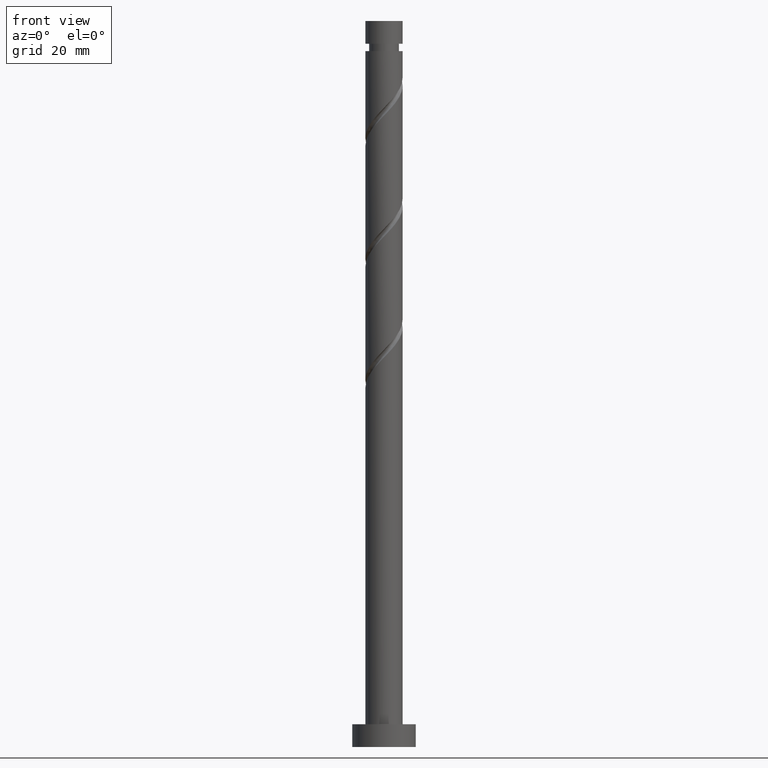
[diagram: clean part render]
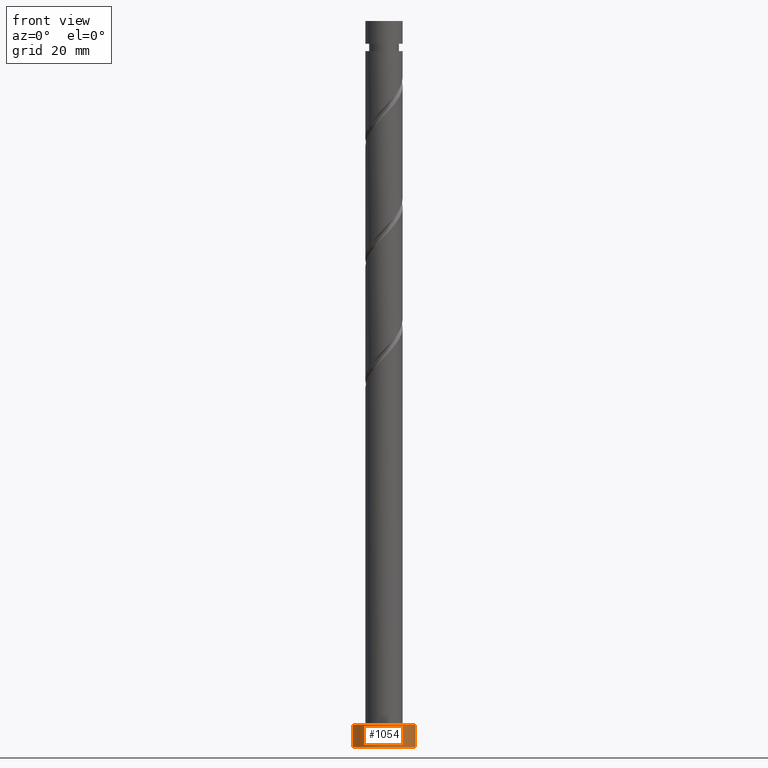
[diagram: same view with one face highlighted and labeled with its STEP entity id]
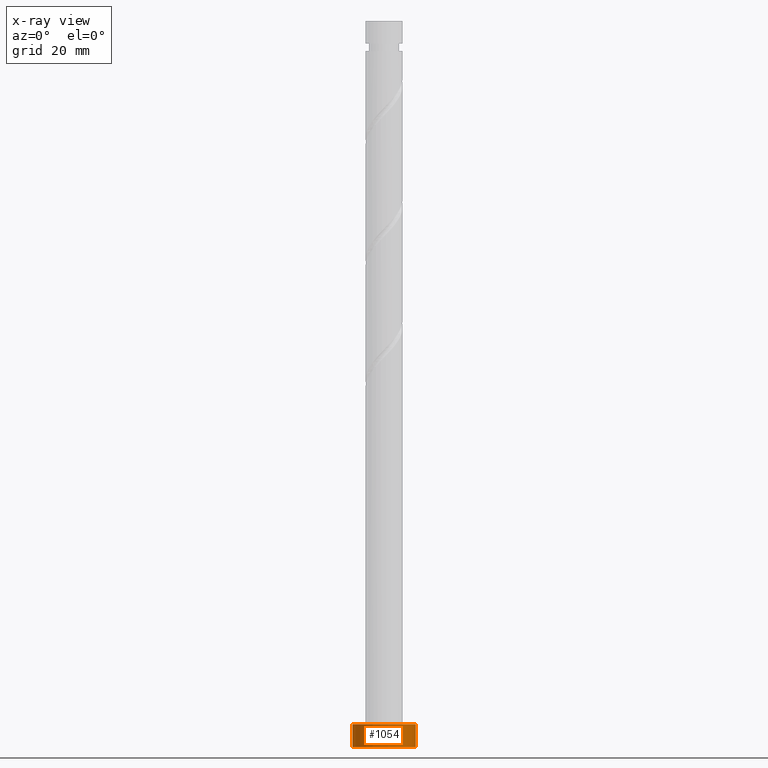
[diagram: x-ray of the same camera — body ghosted, the highlighted face saturated]
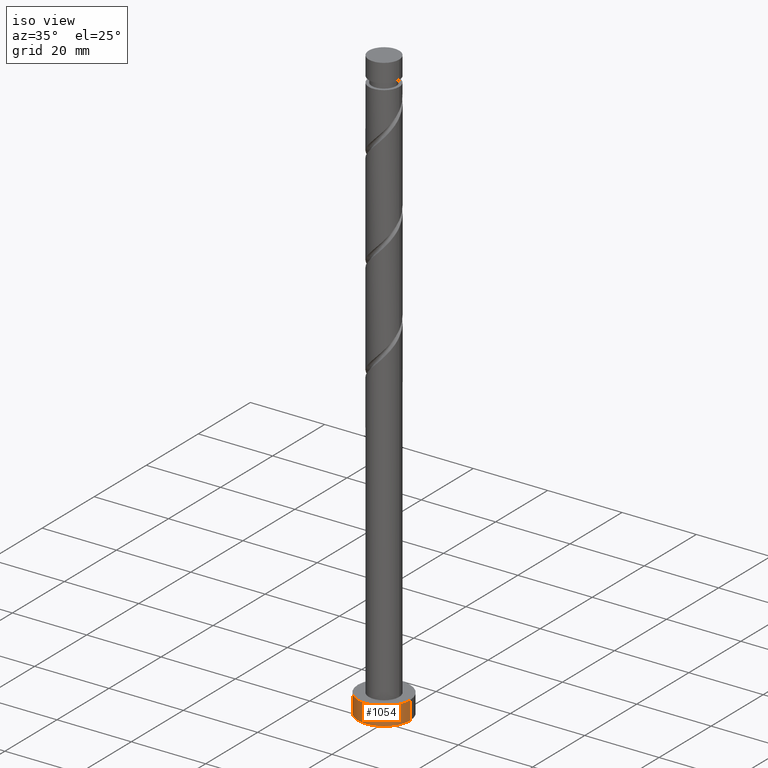
[diagram: same view with one face highlighted and labeled with its STEP entity id]
A machine part, front view. The second image highlights one B-rep face of the part: STEP entity #1054.
The next image is the same camera in x-ray: the body ghosted, the highlighted face saturated — about 0% of this face is hidden behind the body in this view.
A second angle (iso view) of the same face is appended — the face is thin or edge-on in the first view.
In plain terms, the highlighted cylindrical surface (edge-blend (fillet) strip) has radius 7 mm, axis along (-0, -0, -1).
Its self-contained STEP definition (entity closure, byte-faithful):
#3 = VERTEX_POINT ( 'NONE', #1326 ) ;
#11 = VERTEX_POINT ( 'NONE', #1602 ) ;
#18 = AXIS2_PLACEMENT_3D ( 'NONE', #793, #288, #812 ) ;
#74 = DIRECTION ( 'NONE',  ( -1.000000000000000000, 0.000000000000000000, 0.000000000000000000 ) ) ;
#89 = CYLINDRICAL_SURFACE ( 'NONE', #132, 7.000000000000000000 ) ;
#118 = LINE ( 'NONE', #1134, #509 ) ;
#132 = AXIS2_PLACEMENT_3D ( 'NONE', #593, #1098, #74 ) ;
#288 = DIRECTION ( 'NONE',  ( 0.000000000000000000, 0.000000000000000000, 1.000000000000000000 ) ) ;
#306 = DIRECTION ( 'NONE',  ( -0.000000000000000000, -0.000000000000000000, -1.000000000000000000 ) ) ;
#346 = EDGE_CURVE ( 'NONE', #11, #646, #894, .T. ) ;
#362 = DIRECTION ( 'NONE',  ( 0.000000000000000000, 0.000000000000000000, 1.000000000000000000 ) ) ;
#386 = CARTESIAN_POINT ( 'NONE',  ( 0.000000000000000000, 0.000000000000000000, 5.000000000000000000 ) ) ;
#395 = CARTESIAN_POINT ( 'NONE',  ( 7.000000000000000000, 8.572527594031473190E-16, 5.000000000000000000 ) ) ;
#469 = EDGE_CURVE ( 'NONE', #634, #646, #1599, .T. ) ;
#483 = AXIS2_PLACEMENT_3D ( 'NONE', #386, #362, #1242 ) ;
#507 = DIRECTION ( 'NONE',  ( -0.000000000000000000, -0.000000000000000000, -1.000000000000000000 ) ) ;
#509 = VECTOR ( 'NONE', #507, 1000.000000000000000 ) ;
#593 = CARTESIAN_POINT ( 'NONE',  ( 0.000000000000000000, 0.000000000000000000, 5.000000000000000000 ) ) ;
#634 = VERTEX_POINT ( 'NONE', #395 ) ;
#646 = VERTEX_POINT ( 'NONE', #744 ) ;
#689 = EDGE_CURVE ( 'NONE', #3, #11, #118, .T. ) ;
#704 = FACE_OUTER_BOUND ( 'NONE', #1307, .T. ) ;
#744 = CARTESIAN_POINT ( 'NONE',  ( 7.000000000000000000, 8.572527594031473190E-16, 0.000000000000000000 ) ) ;
#793 = CARTESIAN_POINT ( 'NONE',  ( 0.000000000000000000, 0.000000000000000000, 0.000000000000000000 ) ) ;
#806 = ORIENTED_EDGE ( 'NONE', *, *, #346, .T. ) ;
#807 = ORIENTED_EDGE ( 'NONE', *, *, #689, .T. ) ;
#812 = DIRECTION ( 'NONE',  ( 1.000000000000000000, 0.000000000000000000, 0.000000000000000000 ) ) ;
#860 = ORIENTED_EDGE ( 'NONE', *, *, #469, .F. ) ;
#889 = CARTESIAN_POINT ( 'NONE',  ( 7.000000000000000000, 8.572527594031473190E-16, 5.000000000000000000 ) ) ;
#894 = CIRCLE ( 'NONE', #18, 7.000000000000000000 ) ;
#1054 = ADVANCED_FACE ( 'NONE', ( #704 ), #89, .T. ) ;
#1098 = DIRECTION ( 'NONE',  ( -0.000000000000000000, -0.000000000000000000, -1.000000000000000000 ) ) ;
#1134 = CARTESIAN_POINT ( 'NONE',  ( -7.000000000000000000, 0.000000000000000000, 5.000000000000000000 ) ) ;
#1168 = ORIENTED_EDGE ( 'NONE', *, *, #1298, .F. ) ;
#1242 = DIRECTION ( 'NONE',  ( 1.000000000000000000, 0.000000000000000000, 0.000000000000000000 ) ) ;
#1298 = EDGE_CURVE ( 'NONE', #3, #634, #1360, .T. ) ;
#1307 = EDGE_LOOP ( 'NONE', ( #860, #1168, #807, #806 ) ) ;
#1326 = CARTESIAN_POINT ( 'NONE',  ( -7.000000000000000000, 0.000000000000000000, 5.000000000000000000 ) ) ;
#1360 = CIRCLE ( 'NONE', #483, 7.000000000000000000 ) ;
#1386 = VECTOR ( 'NONE', #306, 1000.000000000000000 ) ;
#1599 = LINE ( 'NONE', #889, #1386 ) ;
#1602 = CARTESIAN_POINT ( 'NONE',  ( -7.000000000000000000, 0.000000000000000000, 0.000000000000000000 ) ) ;